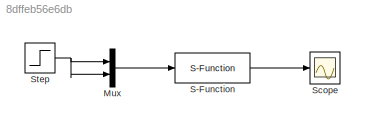
MODEL slx_8dffeb56e6db
KIND model
CONFIG InitFcn = A = [-0.5572 -0.7814;0.7814  0]; \nB = [1 -1;0 2]; \nC = [1.9691  6.4493]; 
BLOCK [Mux] Mux
  DisplayOption = bar
  Inputs = 2
  Ports = [2, 1]
BLOCK [S-Function] S-Function
  EnableBusSupport = off
  FunctionName = sfun_state01
  Parameters = A,B,C
  Ports = [1, 1]
BLOCK [Scope] Scope
  DataFormat = StructureWithTime
  Floating = off
  NumInputPorts = 1
  Ports = [1]
  SampleTime = 0
  ShowLegends = off
  ZoomMode = yonly
BLOCK [Step] Step
  SampleTime = 0
LINE Mux:1 -> S-Function:1
LINE S-Function:1 -> Scope:1
NET Step:1 -> Mux:1, Mux:2
note: NET lines group one-source signal fan-out (src -> all destinations, sorted); 1:1 wires keep LINE
